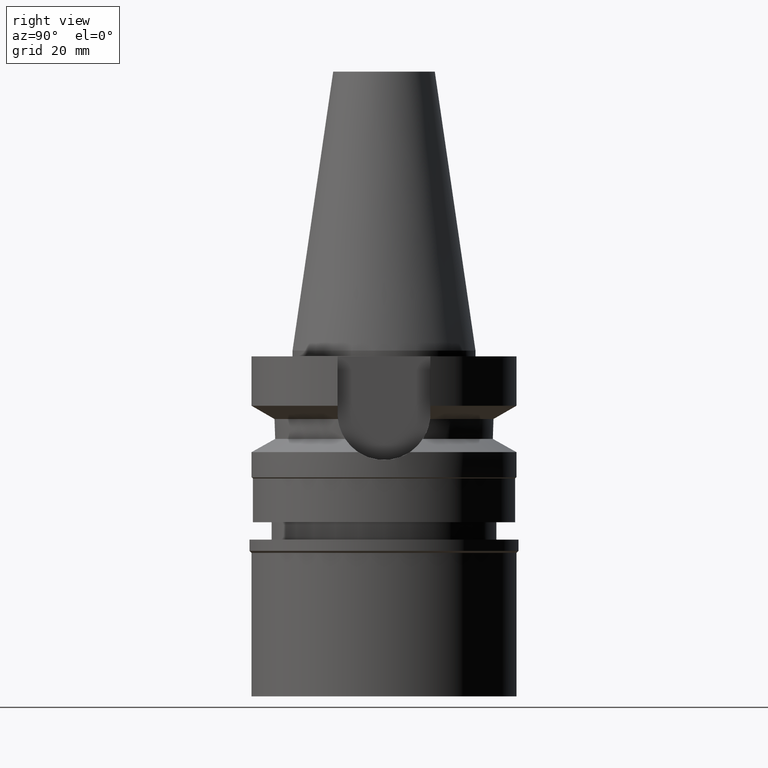
[diagram: clean part render]
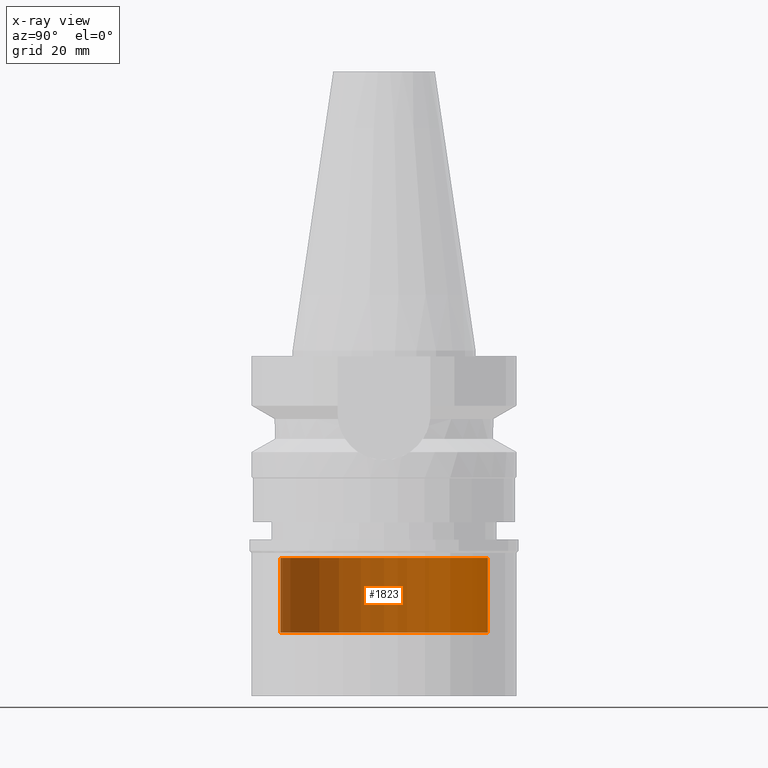
[diagram: x-ray — body ghosted, one internal face saturated and labeled with its STEP entity id]
A machine part, right view, then the same camera in x-ray: the body is ghosted and one INTERNAL B-rep face — a face not visible from any outside direction — is saturated and labeled: STEP entity #1823.
In plain terms, the highlighted cylindrical surface (partial cylindrical patch) has radius 18 mm, axis along (0, 0, -1).
Its self-contained STEP definition (entity closure, byte-faithful):
#66 = CARTESIAN_POINT ( 'NONE',  ( 0.0000000000000000000, -18.00000000000000000, -36.00000000000000000 ) ) ;
#117 = ORIENTED_EDGE ( 'NONE', *, *, #315, .T. ) ;
#315 = EDGE_CURVE ( 'NONE', #2394, #1562, #1804, .T. ) ;
#356 = CARTESIAN_POINT ( 'NONE',  ( 0.0000000000000000000, 18.00000000000000000, -49.00000000000000000 ) ) ;
#499 = CARTESIAN_POINT ( 'NONE',  ( 0.0000000000000000000, 0.0000000000000000000, -49.00000000000000000 ) ) ;
#550 = CYLINDRICAL_SURFACE ( 'NONE', #789, 18.00000000000000000 ) ;
#789 = AXIS2_PLACEMENT_3D ( 'NONE', #2427, #2450, #1975 ) ;
#857 = LINE ( 'NONE', #1364, #1902 ) ;
#1006 = CARTESIAN_POINT ( 'NONE',  ( 0.0000000000000000000, 0.0000000000000000000, -36.00000000000000000 ) ) ;
#1027 = AXIS2_PLACEMENT_3D ( 'NONE', #1006, #1970, #2042 ) ;
#1055 = FACE_OUTER_BOUND ( 'NONE', #1185, .T. ) ;
#1132 = DIRECTION ( 'NONE',  ( 0.0000000000000000000, 0.0000000000000000000, -1.000000000000000000 ) ) ;
#1185 = EDGE_LOOP ( 'NONE', ( #117, #1731, #1470, #1493 ) ) ;
#1186 = EDGE_CURVE ( 'NONE', #2945, #2783, #2708, .T. ) ;
#1209 = CARTESIAN_POINT ( 'NONE',  ( 0.0000000000000000000, 18.00000000000000000, -36.00000000000000000 ) ) ;
#1226 = CARTESIAN_POINT ( 'NONE',  ( 0.0000000000000000000, 18.00000000000000000, -36.00000000000000000 ) ) ;
#1364 = CARTESIAN_POINT ( 'NONE',  ( 0.0000000000000000000, -18.00000000000000000, -36.00000000000000000 ) ) ;
#1470 = ORIENTED_EDGE ( 'NONE', *, *, #1186, .T. ) ;
#1493 = ORIENTED_EDGE ( 'NONE', *, *, #2755, .T. ) ;
#1562 = VERTEX_POINT ( 'NONE', #1745 ) ;
#1641 = VECTOR ( 'NONE', #2626, 1000.000000000000000 ) ;
#1731 = ORIENTED_EDGE ( 'NONE', *, *, #2553, .F. ) ;
#1745 = CARTESIAN_POINT ( 'NONE',  ( 0.0000000000000000000, -18.00000000000000000, -49.00000000000000000 ) ) ;
#1804 = CIRCLE ( 'NONE', #2887, 18.00000000000000000 ) ;
#1823 = ADVANCED_FACE ( 'NONE', ( #1055 ), #550, .T. ) ;
#1883 = LINE ( 'NONE', #1226, #1641 ) ;
#1902 = VECTOR ( 'NONE', #1132, 1000.000000000000000 ) ;
#1970 = DIRECTION ( 'NONE',  ( 0.0000000000000000000, 0.0000000000000000000, -1.000000000000000000 ) ) ;
#1975 = DIRECTION ( 'NONE',  ( 0.0000000000000000000, -1.000000000000000000, 0.0000000000000000000 ) ) ;
#2042 = DIRECTION ( 'NONE',  ( 0.0000000000000000000, -1.000000000000000000, 0.0000000000000000000 ) ) ;
#2394 = VERTEX_POINT ( 'NONE', #356 ) ;
#2427 = CARTESIAN_POINT ( 'NONE',  ( 0.0000000000000000000, 0.0000000000000000000, 53.26999999999999602 ) ) ;
#2450 = DIRECTION ( 'NONE',  ( 0.0000000000000000000, 0.0000000000000000000, -1.000000000000000000 ) ) ;
#2459 = DIRECTION ( 'NONE',  ( 0.0000000000000000000, 0.0000000000000000000, 1.000000000000000000 ) ) ;
#2553 = EDGE_CURVE ( 'NONE', #2945, #1562, #857, .T. ) ;
#2626 = DIRECTION ( 'NONE',  ( 0.0000000000000000000, 0.0000000000000000000, -1.000000000000000000 ) ) ;
#2708 = CIRCLE ( 'NONE', #1027, 18.00000000000000000 ) ;
#2718 = DIRECTION ( 'NONE',  ( 0.0000000000000000000, 1.000000000000000000, 0.0000000000000000000 ) ) ;
#2755 = EDGE_CURVE ( 'NONE', #2783, #2394, #1883, .T. ) ;
#2783 = VERTEX_POINT ( 'NONE', #1209 ) ;
#2887 = AXIS2_PLACEMENT_3D ( 'NONE', #499, #2459, #2718 ) ;
#2945 = VERTEX_POINT ( 'NONE', #66 ) ;